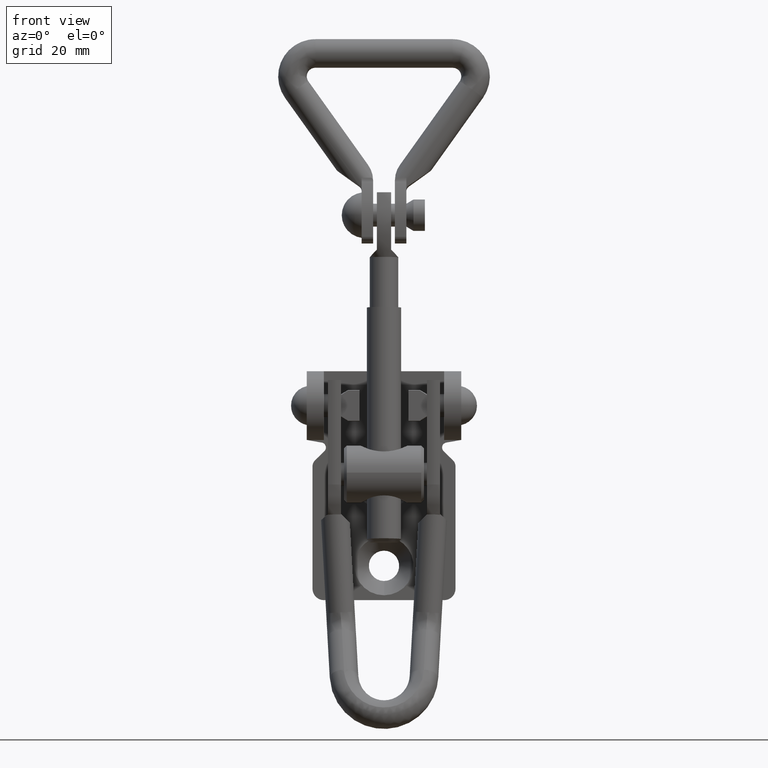
[diagram: clean part render]
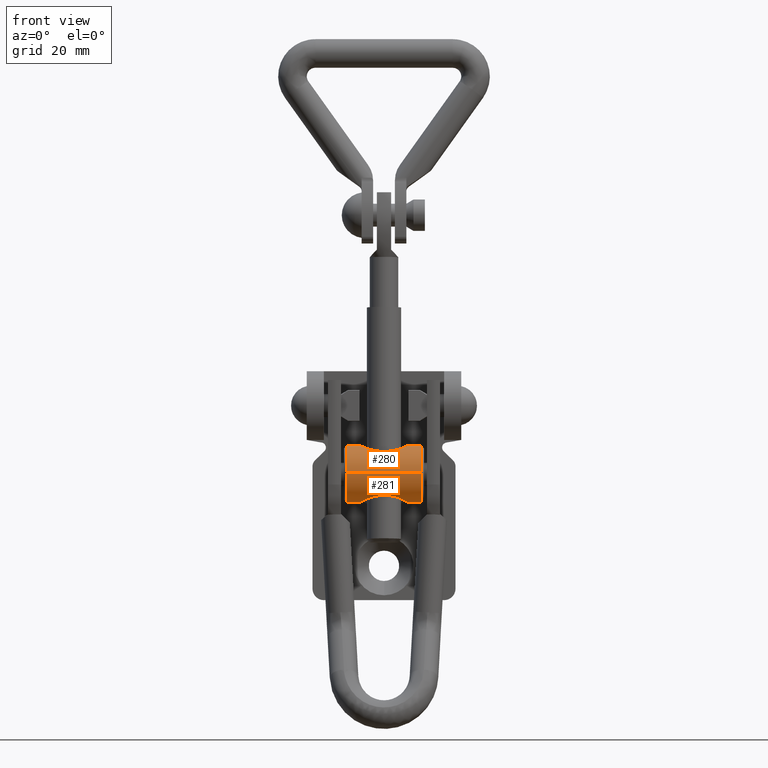
[diagram: same view with one multi-face feature highlighted, each face labeled with its STEP entity id]
A machine part, front view. The highlighted faces form ONE feature: a constant-radius fillet chain: 2 tangent blend faces with common blend radius 5 mm. The faces share edges in the B-rep.
Their STEP definitions:
[1] entity #281 (Cylinder):
#281=ADVANCED_FACE('',(#1011,#1012),#1010,.T.);
#1010=CYLINDRICAL_SURFACE('',#2880,5.00000000000E+00);
#1011=FACE_OUTER_BOUND('',#2881,.T.);
#1012=FACE_BOUND('',#2882,.T.);
#2877=CARTESIAN_POINT('',(0.00000000000E+00,0.00000000000E+00,0.00000000000E+00));
#2878=DIRECTION('',(1.00000000000E+00,0.00000000000E+00,-0.00000000000E+00));
#2879=DIRECTION('',(0.00000000000E+00,9.99961923064E-01,-8.72653549837E-03));
#2880=AXIS2_PLACEMENT_3D('',#2877,#2878,#2879);
#2881=EDGE_LOOP('',(#4366,#4367,#4368,#4369,#4370,#4371));
#2882=EDGE_LOOP('',(#4372));
#4366=ORIENTED_EDGE('',*,*,#5179,.F.);
#4367=ORIENTED_EDGE('',*,*,#5184,.F.);
#4368=ORIENTED_EDGE('',*,*,#5187,.T.);
#4369=ORIENTED_EDGE('',*,*,#5189,.T.);
#4370=ORIENTED_EDGE('',*,*,#5190,.T.);
#4371=ORIENTED_EDGE('',*,*,#5188,.F.);
#4372=ORIENTED_EDGE('',*,*,#5164,.F.);
#5164=EDGE_CURVE('',#6345,#6345,#6346,.T.);
#5179=EDGE_CURVE('',#6450,#6451,#6452,.T.);
#5184=EDGE_CURVE('',#6477,#6450,#6484,.T.);
#5187=EDGE_CURVE('',#6477,#6498,#6505,.T.);
#5188=EDGE_CURVE('',#6451,#6490,#6511,.T.);
#5189=EDGE_CURVE('',#6498,#6517,#6518,.T.);
#5190=EDGE_CURVE('',#6517,#6490,#6524,.T.);
#6345=VERTEX_POINT('',#9452);
#6346=(BOUNDED_CURVE() B_SPLINE_CURVE(3,(#9453,#9454,#9455,#9456,#9457,#9458,#9459,#9460,#9461,#9462,#9463,#9464,#9465,#9466,#9467,#9468,#9469,#9470,#9471,#9472,#9473,#9474,#9475,#9476,#9477,#9478,#9479,#9480,#9481,#9482,#9483,#9484,#9485,#9486,#9487,#9488,#9489,#9490,#9491,#9492,#9493,#9494,#9495,#9496,#9497,#9498,#9499,#9500,#9501,#9502,#9503,#9504,#9505,#9506,#9507,#9508,#9509,#9510,#9511,#9512,#9513,#9514,#9515,#9516,#9517,#9518,#9519,#9520,#9521,#9522),.UNSPECIFIED.,.T.,.F.) B_SPLINE_CURVE_WITH_KNOTS((4,2,2,2,2,2,2,2,2,2,2,2,2,2,2,2,2,2,2,2,2,2,2,2,2,2,2,2,2,2,2,2,2,2,4),(0.00000000000E+00,7.46015145107E-04,1.11902271766E-03,1.49203029021E-03,2.23804543532E-03,2.98406058043E-03,3.73007572553E-03,4.47609087064E-03,5.22210601575E-03,5.96812116086E-03,6.71413630596E-03,7.46015145107E-03,8.20616659618E-03,8.95218174128E-03,9.69819688639E-03,1.04442120315E-02,1.08172196041E-02,1.11902271766E-02,1.19362423217E-02,1.26822574668E-02,1.30552650394E-02,1.34282726119E-02,1.41742877570E-02,1.49203029021E-02,1.64123331924E-02,1.71583483375E-02,1.79043634826E-02,1.86503786277E-02,1.93963937728E-02,2.01424089179E-02,2.08884240630E-02,2.16344392081E-02,2.23804543532E-02,2.31264694983E-02,2.38724846434E-02),.UNSPECIFIED.) CURVE() GEOMETRIC_REPRESENTATION_ITEM() RATIONAL_B_SPLINE_CURVE((1.00000000000E+00,1.00000000000E+00,1.00000000000E+00,1.00000000000E+00,1.00000000000E+00,1.00000000000E+00,1.00000000000E+00,1.00000000000E+00,1.00000000000E+00,1.00000000000E+00,1.00000000000E+00,1.00000000000E+00,1.00000000000E+00,1.00000000000E+00,1.00000000000E+00,1.00000000000E+00,1.00000000000E+00,1.00000000000E+00,1.00000000000E+00,1.00000000000E+00,1.00000000000E+00,1.00000000000E+00,1.00000000000E+00,1.00000000000E+00,1.00000000000E+00,1.00000000000E+00,1.00000000000E+00,1.00000000000E+00,1.00000000000E+00,1.00000000000E+00,1.00000000000E+00,1.00000000000E+00,1.00000000000E+00,1.00000000000E+00,1.00000000000E+00,1.00000000000E+00,1.00000000000E+00,1.00000000000E+00,1.00000000000E+00,1.00000000000E+00,1.00000000000E+00,1.00000000000E+00,1.00000000000E+00,1.00000000000E+00,1.00000000000E+00,1.00000000000E+00,1.00000000000E+00,1.00000000000E+00,1.00000000000E+00,1.00000000000E+00,1.00000000000E+00,1.00000000000E+00,1.00000000000E+00,1.00000000000E+00,1.00000000000E+00,1.00000000000E+00,1.00000000000E+00,1.00000000000E+00,1.00000000000E+00,1.00000000000E+00,1.00000000000E+00,1.00000000000E+00,1.00000000000E+00,1.00000000000E+00,1.00000000000E+00,1.00000000000E+00,1.00000000000E+00,1.00000000000E+00,1.00000000000E+00,1.00000000000E+00)) REPRESENTATION_ITEM('') );
#6450=VERTEX_POINT('',#9651);
#6451=VERTEX_POINT('',#9652);
#6452=(BOUNDED_CURVE() B_SPLINE_CURVE(2,(#9653,#9654,#9655),.UNSPECIFIED.,.F.,.F.) B_SPLINE_CURVE_WITH_KNOTS((3,3),(0.00000000000E+00,1.00000000000E+00),.UNSPECIFIED.) CURVE() GEOMETRIC_REPRESENTATION_ITEM() RATIONAL_B_SPLINE_CURVE((1.00000000000E+00,7.04492960547E-01,1.00000000000E+00)) REPRESENTATION_ITEM('') );
#6477=VERTEX_POINT('',#9664);
#6484=CIRCLE('',#9672,5.00000000000E+00);
#6490=VERTEX_POINT('',#9673);
#6498=VERTEX_POINT('',#9678);
#6505=(BOUNDED_CURVE() B_SPLINE_CURVE(1,(#9683,#9684),.UNSPECIFIED.,.F.,.F.) B_SPLINE_CURVE_WITH_KNOTS((2,2),(8.33333343261E-02,9.16666667006E-01),.UNSPECIFIED.) CURVE() GEOMETRIC_REPRESENTATION_ITEM() RATIONAL_B_SPLINE_CURVE((1.00000000000E+00,1.00000000000E+00)) REPRESENTATION_ITEM('') );
#6511=(BOUNDED_CURVE() B_SPLINE_CURVE(1,(#9685,#9686),.UNSPECIFIED.,.F.,.F.) B_SPLINE_CURVE_WITH_KNOTS((2,2),(8.33333333333E-02,9.16666666667E-01),.UNSPECIFIED.) CURVE() GEOMETRIC_REPRESENTATION_ITEM() RATIONAL_B_SPLINE_CURVE((7.50000000000E-01,7.50000000000E-01)) REPRESENTATION_ITEM('') );
#6517=VERTEX_POINT('',#9687);
#6518=CIRCLE('',#9691,5.00000000000E+00);
#6524=(BOUNDED_CURVE() B_SPLINE_CURVE(2,(#9692,#9693,#9694),.UNSPECIFIED.,.F.,.F.) B_SPLINE_CURVE_WITH_KNOTS((3,3),(0.00000000000E+00,1.00000000000E+00),.UNSPECIFIED.) CURVE() GEOMETRIC_REPRESENTATION_ITEM() RATIONAL_B_SPLINE_CURVE((1.00000000000E+00,7.04460910766E-01,1.00000000000E+00)) REPRESENTATION_ITEM('') );
#9452=CARTESIAN_POINT('',(1.39500000000E+01,1.94289029309E-16,-5.00000000000E+00));
#9453=CARTESIAN_POINT('',(1.39500000000E+01,1.94289029309E-16,-5.00000000000E+00));
#9454=CARTESIAN_POINT('',(1.39500000000E+01,-2.53151343946E-01,-5.00000000000E+00));
#9455=CARTESIAN_POINT('',(1.39189650651E+01,-4.99355814534E-01,-4.98090121543E+00));
#9456=CARTESIAN_POINT('',(1.38276797413E+01,-8.58886701293E-01,-4.92716926046E+00));
#9457=CARTESIAN_POINT('',(1.37892484844E+01,-9.78016460825E-01,-4.90481414601E+00));
#9458=CARTESIAN_POINT('',(1.36989407229E+01,-1.20660607051E+00,-4.85363985017E+00));
#9459=CARTESIAN_POINT('',(1.36471329018E+01,-1.31639577999E+00,-4.82485568117E+00));
#9460=CARTESIAN_POINT('',(1.34723883401E+01,-1.63316344287E+00,-4.73088764861E+00));
#9461=CARTESIAN_POINT('',(1.33279901179E+01,-1.82961339428E+00,-4.65707933272E+00));
#9462=CARTESIAN_POINT('',(1.30005779432E+01,-2.17668854771E+00,-4.50531908415E+00));
#9463=CARTESIAN_POINT('',(1.28165885822E+01,-2.32943012249E+00,-4.42686050122E+00));
#9464=CARTESIAN_POINT('',(1.24165648727E+01,-2.59534875352E+00,-4.27638906561E+00));
#9465=CARTESIAN_POINT('',(1.22042110265E+01,-2.70646848670E+00,-4.20568717963E+00));
#9466=CARTESIAN_POINT('',(1.17573766217E+01,-2.89375803290E+00,-4.07908577618E+00));
#9467=CARTESIAN_POINT('',(1.15222358006E+01,-2.96971371370E+00,-4.02322235824E+00));
#9468=CARTESIAN_POINT('',(1.10454658986E+01,-3.08791653896E+00,-3.93322884327E+00));
#9469=CARTESIAN_POINT('',(1.08020802292E+01,-3.13098364278E+00,-3.89850269374E+00));
#9470=CARTESIAN_POINT('',(1.03057419238E+01,-3.18860179992E+00,-3.85151923090E+00));
#9471=CARTESIAN_POINT('',(1.00545760222E+01,-3.20274553625E+00,-3.83958605916E+00));
#9472=CARTESIAN_POINT('',(9.55674910083E+00,-3.20316792742E+00,-3.83923368713E+00));
#9473=CARTESIAN_POINT('',(9.30853820844E+00,-3.18964059641E+00,-3.85065074344E+00));
#9474=CARTESIAN_POINT('',(8.81357134902E+00,-3.13338316416E+00,-3.89656620998E+00));
#9475=CARTESIAN_POINT('',(8.56661197818E+00,-3.09026233235E+00,-3.93136663974E+00));
#9476=CARTESIAN_POINT('',(8.09168347600E+00,-2.97377865617E+00,-4.02019967700E+00));
#9477=CARTESIAN_POINT('',(7.86150189545E+00,-2.90028788732E+00,-4.07438960560E+00));
#9478=CARTESIAN_POINT('',(7.41699559904E+00,-2.71662062906E+00,-4.19908238134E+00));
#9479=CARTESIAN_POINT('',(7.20031990748E+00,-2.60479712782E+00,-4.27057635750E+00));
#9480=CARTESIAN_POINT('',(6.80047440958E+00,-2.34240373415E+00,-4.41994742599E+00));
#9481=CARTESIAN_POINT('',(6.61682507134E+00,-2.19237868396E+00,-4.49769696560E+00));
#9482=CARTESIAN_POINT('',(6.28526951171E+00,-1.84618253512E+00,-4.65052817810E+00));
#9483=CARTESIAN_POINT('',(6.14056743588E+00,-1.65224424178E+00,-4.72418357910E+00));
#9484=CARTESIAN_POINT('',(5.96384047516E+00,-1.33817701592E+00,-4.81884194127E+00));
#9485=CARTESIAN_POINT('',(5.91120975361E+00,-1.22912428091E+00,-4.84797651389E+00));
#9486=CARTESIAN_POINT('',(5.81903374081E+00,-1.00157291158E+00,-4.90004841608E+00));
#9487=CARTESIAN_POINT('',(5.77944395094E+00,-8.82399495721E-01,-4.92301692131E+00));
#9488=CARTESIAN_POINT('',(5.68494283399E+00,-5.22623758902E-01,-4.97853013617E+00));
#9489=CARTESIAN_POINT('',(5.65198942647E+00,-2.76194887191E-01,-4.99879289377E+00));
#9490=CARTESIAN_POINT('',(5.64818181138E+00,2.30609517554E-01,-5.00110320439E+00));
#9491=CARTESIAN_POINT('',(5.67758914397E+00,4.79186804578E-01,-4.98298406616E+00));
#9492=CARTESIAN_POINT('',(5.76728821231E+00,8.42011757049E-01,-4.93010687007E+00));
#9493=CARTESIAN_POINT('',(5.80516738183E+00,9.61765787100E-01,-4.90803461246E+00));
#9494=CARTESIAN_POINT('',(5.89423694422E+00,1.19117949889E+00,-4.85745700832E+00));
#9495=CARTESIAN_POINT('',(5.94560172104E+00,1.30176886282E+00,-4.82884657210E+00));
#9496=CARTESIAN_POINT('',(6.11988408960E+00,1.62180748320E+00,-4.73489028846E+00));
#9497=CARTESIAN_POINT('',(6.26396947855E+00,1.81956977046E+00,-4.66104666691E+00));
#9498=CARTESIAN_POINT('',(6.59031604511E+00,2.16847837329E+00,-4.50931166868E+00));
#9499=CARTESIAN_POINT('',(6.77611657619E+00,2.32373973229E+00,-4.42985683946E+00));
#9500=CARTESIAN_POINT('',(7.37361836482E+00,2.72340615097E+00,-4.20436092445E+00));
#9501=CARTESIAN_POINT('',(7.83181143501E+00,2.90808018919E+00,-4.07006838879E+00));
#9502=CARTESIAN_POINT('',(8.54835976521E+00,3.08670691906E+00,-3.93418824726E+00));
#9503=CARTESIAN_POINT('',(8.79494504028E+00,3.13053979191E+00,-3.89886109411E+00));
#9504=CARTESIAN_POINT('',(9.29238105671E+00,3.18848147207E+00,-3.85162084351E+00));
#9505=CARTESIAN_POINT('',(9.54159329964E+00,3.20262716107E+00,-3.83968481098E+00));
#9506=CARTESIAN_POINT('',(1.00409647260E+01,3.20327971104E+00,-3.83914043419E+00));
#9507=CARTESIAN_POINT('',(1.02923983256E+01,3.18963644451E+00,-3.85065765980E+00));
#9508=CARTESIAN_POINT('',(1.07905884604E+01,3.13280701911E+00,-3.89703287671E+00));
#9509=CARTESIAN_POINT('',(1.10339705196E+01,3.09015134550E+00,-3.93145502349E+00));
#9510=CARTESIAN_POINT('',(1.15090516727E+01,2.97356638096E+00,-4.02035780968E+00));
#9511=CARTESIAN_POINT('',(1.17407595854E+01,2.89969080841E+00,-4.07486412310E+00));
#9512=CARTESIAN_POINT('',(1.21909991286E+01,2.71297213714E+00,-4.20148861586E+00));
#9513=CARTESIAN_POINT('',(1.24065249348E+01,2.60090848505E+00,-4.27294957640E+00));
#9514=CARTESIAN_POINT('',(1.28050006587E+01,2.33818867416E+00,-4.42218235197E+00));
#9515=CARTESIAN_POINT('',(1.29916269233E+01,2.18488575835E+00,-4.50137698506E+00));
#9516=CARTESIAN_POINT('',(1.33223070726E+01,1.83687307939E+00,-4.65424728918E+00));
#9517=CARTESIAN_POINT('',(1.34650852908E+01,1.64454697473E+00,-4.72706985463E+00));
#9518=CARTESIAN_POINT('',(1.37028242544E+01,1.21722089159E+00,-4.85469849360E+00));
#9519=CARTESIAN_POINT('',(1.37942998898E+01,9.87249381324E-01,-4.90754846339E+00));
#9520=CARTESIAN_POINT('',(1.39174891024E+01,5.08163889730E-01,-4.98000629745E+00));
#9521=CARTESIAN_POINT('',(1.39500000000E+01,2.53151343946E-01,-5.00000000000E+00));
#9522=CARTESIAN_POINT('',(1.39500000000E+01,-8.32667268469E-17,-5.00000000000E+00));
#9651=CARTESIAN_POINT('',(3.30000000000E+00,-4.88678453230E-04,-4.99999997612E+00));
#9652=CARTESIAN_POINT('',(3.30000000000E+00,-4.99980961532E+00,4.36326774919E-02));
#9653=CARTESIAN_POINT('',(3.30000000000E+00,-4.88678453228E-04,-4.99999997612E+00));
#9654=CARTESIAN_POINT('',(3.30000000000E+00,-5.03752248653E+00,-4.99950767814E+00));
#9655=CARTESIAN_POINT('',(3.30000000000E+00,-4.99980961532E+00,4.36326774919E-02));
#9664=CARTESIAN_POINT('',(3.30000000000E+00,4.99980961532E+00,-4.36326774759E-02));
#9669=CARTESIAN_POINT('',(3.30000000000E+00,0.00000000000E+00,0.00000000000E+00));
#9670=DIRECTION('',(-1.00000000000E+00,0.00000000000E+00,0.00000000000E+00));
#9671=DIRECTION('',(0.00000000000E+00,-1.22460635382E-16,1.00000000000E+00));
#9672=AXIS2_PLACEMENT_3D('',#9669,#9670,#9671);
#9673=CARTESIAN_POINT('',(1.63000000000E+01,-4.99980961532E+00,4.36326774919E-02));
#9678=CARTESIAN_POINT('',(1.63000000000E+01,4.99980961532E+00,-4.36326774759E-02));
#9683=CARTESIAN_POINT('',(3.30000001549E+00,4.99980961532E+00,-4.36326774919E-02));
#9684=CARTESIAN_POINT('',(1.63000000053E+01,4.99980961532E+00,-4.36326774919E-02));
#9685=CARTESIAN_POINT('',(3.30000000000E+00,-4.99980961532E+00,4.36326774919E-02));
#9686=CARTESIAN_POINT('',(1.63000000000E+01,-4.99980961532E+00,4.36326774919E-02));
#9687=CARTESIAN_POINT('',(1.63000000000E+01,6.25252205330E-08,-5.00000000000E+00));
#9688=CARTESIAN_POINT('',(1.63000000000E+01,0.00000000000E+00,0.00000000000E+00));
#9689=DIRECTION('',(-1.00000000000E+00,0.00000000000E+00,0.00000000000E+00));
#9690=DIRECTION('',(0.00000000000E+00,-1.22460635382E-16,1.00000000000E+00));
#9691=AXIS2_PLACEMENT_3D('',#9688,#9689,#9690);
#9692=CARTESIAN_POINT('',(1.63000000000E+01,6.25252195608E-08,-5.00000000000E+00));
#9693=CARTESIAN_POINT('',(1.63000000000E+01,-5.03748872651E+00,-5.00000006299E+00));
#9694=CARTESIAN_POINT('',(1.63000000000E+01,-4.99980961532E+00,4.36326774919E-02));
[2] entity #280 (Cylinder):
#280=ADVANCED_FACE('',(#1000,#1001),#999,.T.);
#999=CYLINDRICAL_SURFACE('',#2874,5.00000000000E+00);
#1000=FACE_OUTER_BOUND('',#2875,.T.);
#1001=FACE_BOUND('',#2876,.T.);
#2871=CARTESIAN_POINT('',(0.00000000000E+00,0.00000000000E+00,0.00000000000E+00));
#2872=DIRECTION('',(1.00000000000E+00,0.00000000000E+00,-0.00000000000E+00));
#2873=DIRECTION('',(0.00000000000E+00,9.99961923064E-01,-8.72653549837E-03));
#2874=AXIS2_PLACEMENT_3D('',#2871,#2872,#2873);
#2875=EDGE_LOOP('',(#4359,#4360,#4361,#4362,#4363,#4364));
#2876=EDGE_LOOP('',(#4365));
#4359=ORIENTED_EDGE('',*,*,#5185,.T.);
#4360=ORIENTED_EDGE('',*,*,#5186,.T.);
#4361=ORIENTED_EDGE('',*,*,#5187,.F.);
#4362=ORIENTED_EDGE('',*,*,#5183,.F.);
#4363=ORIENTED_EDGE('',*,*,#5180,.F.);
#4364=ORIENTED_EDGE('',*,*,#5188,.T.);
#4365=ORIENTED_EDGE('',*,*,#5161,.F.);
#5161=EDGE_CURVE('',#6324,#6324,#6325,.T.);
#5180=EDGE_CURVE('',#6451,#6458,#6459,.T.);
#5183=EDGE_CURVE('',#6458,#6477,#6478,.T.);
#5185=EDGE_CURVE('',#6490,#6491,#6492,.T.);
#5186=EDGE_CURVE('',#6491,#6498,#6499,.T.);
#5187=EDGE_CURVE('',#6477,#6498,#6505,.T.);
#5188=EDGE_CURVE('',#6451,#6490,#6511,.T.);
#6324=VERTEX_POINT('',#9313);
#6325=(BOUNDED_CURVE() B_SPLINE_CURVE(3,(#9314,#9315,#9316,#9317,#9318,#9319,#9320,#9321,#9322,#9323,#9324,#9325,#9326,#9327,#9328,#9329,#9330,#9331,#9332,#9333,#9334,#9335,#9336,#9337,#9338,#9339,#9340,#9341,#9342,#9343,#9344,#9345,#9346,#9347,#9348,#9349,#9350,#9351,#9352,#9353,#9354,#9355,#9356,#9357,#9358,#9359,#9360,#9361,#9362,#9363,#9364,#9365,#9366,#9367,#9368,#9369,#9370,#9371,#9372,#9373,#9374,#9375,#9376,#9377,#9378,#9379,#9380,#9381,#9382,#9383),.UNSPECIFIED.,.T.,.F.) B_SPLINE_CURVE_WITH_KNOTS((4,2,2,2,2,2,2,2,2,2,2,2,2,2,2,2,2,2,2,2,2,2,2,2,2,2,2,2,2,2,2,2,2,2,4),(0.00000000000E+00,7.46015145107E-04,1.11902271766E-03,1.49203029021E-03,2.23804543532E-03,2.98406058043E-03,3.73007572553E-03,4.47609087064E-03,5.22210601575E-03,5.96812116086E-03,6.71413630596E-03,7.46015145107E-03,8.20616659618E-03,8.95218174128E-03,9.69819688639E-03,1.04442120315E-02,1.08172196041E-02,1.11902271766E-02,1.19362423217E-02,1.26822574668E-02,1.30552650394E-02,1.34282726119E-02,1.41742877570E-02,1.49203029021E-02,1.64123331924E-02,1.71583483375E-02,1.79043634826E-02,1.86503786277E-02,1.93963937728E-02,2.01424089179E-02,2.08884240630E-02,2.16344392081E-02,2.23804543532E-02,2.31264694983E-02,2.38724846434E-02),.UNSPECIFIED.) CURVE() GEOMETRIC_REPRESENTATION_ITEM() RATIONAL_B_SPLINE_CURVE((1.00000000000E+00,1.00000000000E+00,1.00000000000E+00,1.00000000000E+00,1.00000000000E+00,1.00000000000E+00,1.00000000000E+00,1.00000000000E+00,1.00000000000E+00,1.00000000000E+00,1.00000000000E+00,1.00000000000E+00,1.00000000000E+00,1.00000000000E+00,1.00000000000E+00,1.00000000000E+00,1.00000000000E+00,1.00000000000E+00,1.00000000000E+00,1.00000000000E+00,1.00000000000E+00,1.00000000000E+00,1.00000000000E+00,1.00000000000E+00,1.00000000000E+00,1.00000000000E+00,1.00000000000E+00,1.00000000000E+00,1.00000000000E+00,1.00000000000E+00,1.00000000000E+00,1.00000000000E+00,1.00000000000E+00,1.00000000000E+00,1.00000000000E+00,1.00000000000E+00,1.00000000000E+00,1.00000000000E+00,1.00000000000E+00,1.00000000000E+00,1.00000000000E+00,1.00000000000E+00,1.00000000000E+00,1.00000000000E+00,1.00000000000E+00,1.00000000000E+00,1.00000000000E+00,1.00000000000E+00,1.00000000000E+00,1.00000000000E+00,1.00000000000E+00,1.00000000000E+00,1.00000000000E+00,1.00000000000E+00,1.00000000000E+00,1.00000000000E+00,1.00000000000E+00,1.00000000000E+00,1.00000000000E+00,1.00000000000E+00,1.00000000000E+00,1.00000000000E+00,1.00000000000E+00,1.00000000000E+00,1.00000000000E+00,1.00000000000E+00,1.00000000000E+00,1.00000000000E+00,1.00000000000E+00,1.00000000000E+00)) REPRESENTATION_ITEM('') );
#6451=VERTEX_POINT('',#9652);
#6458=VERTEX_POINT('',#9656);
#6459=(BOUNDED_CURVE() B_SPLINE_CURVE(2,(#9657,#9658,#9659),.UNSPECIFIED.,.F.,.F.) B_SPLINE_CURVE_WITH_KNOTS((3,3),(8.86644636869E-04,1.00000000000E+00),.UNSPECIFIED.) CURVE() GEOMETRIC_REPRESENTATION_ITEM() RATIONAL_B_SPLINE_CURVE((1.00000000000E+00,7.09745401561E-01,1.00000000000E+00)) REPRESENTATION_ITEM('') );
#6477=VERTEX_POINT('',#9664);
#6478=CIRCLE('',#9668,5.00000000000E+00);
#6490=VERTEX_POINT('',#9673);
#6491=VERTEX_POINT('',#9674);
#6492=(BOUNDED_CURVE() B_SPLINE_CURVE(2,(#9675,#9676,#9677),.UNSPECIFIED.,.F.,.F.) B_SPLINE_CURVE_WITH_KNOTS((3,3),(8.92094204392E-04,1.00000000000E+00),.UNSPECIFIED.) CURVE() GEOMETRIC_REPRESENTATION_ITEM() RATIONAL_B_SPLINE_CURVE((1.00000000000E+00,7.09742783655E-01,1.00000000000E+00)) REPRESENTATION_ITEM('') );
#6498=VERTEX_POINT('',#9678);
#6499=CIRCLE('',#9682,5.00000000000E+00);
#6505=(BOUNDED_CURVE() B_SPLINE_CURVE(1,(#9683,#9684),.UNSPECIFIED.,.F.,.F.) B_SPLINE_CURVE_WITH_KNOTS((2,2),(8.33333343261E-02,9.16666667006E-01),.UNSPECIFIED.) CURVE() GEOMETRIC_REPRESENTATION_ITEM() RATIONAL_B_SPLINE_CURVE((1.00000000000E+00,1.00000000000E+00)) REPRESENTATION_ITEM('') );
#6511=(BOUNDED_CURVE() B_SPLINE_CURVE(1,(#9685,#9686),.UNSPECIFIED.,.F.,.F.) B_SPLINE_CURVE_WITH_KNOTS((2,2),(8.33333333333E-02,9.16666666667E-01),.UNSPECIFIED.) CURVE() GEOMETRIC_REPRESENTATION_ITEM() RATIONAL_B_SPLINE_CURVE((7.50000000000E-01,7.50000000000E-01)) REPRESENTATION_ITEM('') );
#9313=CARTESIAN_POINT('',(1.39500000000E+01,1.38777878078E-16,5.00000000000E+00));
#9314=CARTESIAN_POINT('',(1.39500000000E+01,1.38777878078E-16,5.00000000000E+00));
#9315=CARTESIAN_POINT('',(1.39500000000E+01,2.53151343946E-01,5.00000000000E+00));
#9316=CARTESIAN_POINT('',(1.39189650651E+01,4.99355814534E-01,4.98090121543E+00));
#9317=CARTESIAN_POINT('',(1.38276797413E+01,8.58886701293E-01,4.92716926046E+00));
#9318=CARTESIAN_POINT('',(1.37892484844E+01,9.78016460825E-01,4.90481414601E+00));
#9319=CARTESIAN_POINT('',(1.36989407229E+01,1.20660607051E+00,4.85363985017E+00));
#9320=CARTESIAN_POINT('',(1.36471329018E+01,1.31639577999E+00,4.82485568117E+00));
#9321=CARTESIAN_POINT('',(1.34723883401E+01,1.63316344287E+00,4.73088764861E+00));
#9322=CARTESIAN_POINT('',(1.33279901179E+01,1.82961339428E+00,4.65707933272E+00));
#9323=CARTESIAN_POINT('',(1.30005779432E+01,2.17668854771E+00,4.50531908415E+00));
#9324=CARTESIAN_POINT('',(1.28165885822E+01,2.32943012249E+00,4.42686050122E+00));
#9325=CARTESIAN_POINT('',(1.24165648727E+01,2.59534875352E+00,4.27638906561E+00));
#9326=CARTESIAN_POINT('',(1.22042110265E+01,2.70646848670E+00,4.20568717963E+00));
#9327=CARTESIAN_POINT('',(1.17573766217E+01,2.89375803290E+00,4.07908577618E+00));
#9328=CARTESIAN_POINT('',(1.15222358006E+01,2.96971371370E+00,4.02322235824E+00));
#9329=CARTESIAN_POINT('',(1.10454658986E+01,3.08791653896E+00,3.93322884327E+00));
#9330=CARTESIAN_POINT('',(1.08020802292E+01,3.13098364278E+00,3.89850269374E+00));
#9331=CARTESIAN_POINT('',(1.03057419238E+01,3.18860179992E+00,3.85151923090E+00));
#9332=CARTESIAN_POINT('',(1.00545760222E+01,3.20274553625E+00,3.83958605916E+00));
#9333=CARTESIAN_POINT('',(9.55674910083E+00,3.20316792742E+00,3.83923368713E+00));
#9334=CARTESIAN_POINT('',(9.30853820844E+00,3.18964059641E+00,3.85065074344E+00));
#9335=CARTESIAN_POINT('',(8.81357134902E+00,3.13338316416E+00,3.89656620998E+00));
#9336=CARTESIAN_POINT('',(8.56661197818E+00,3.09026233235E+00,3.93136663974E+00));
#9337=CARTESIAN_POINT('',(8.09168347600E+00,2.97377865617E+00,4.02019967700E+00));
#9338=CARTESIAN_POINT('',(7.86150189545E+00,2.90028788732E+00,4.07438960560E+00));
#9339=CARTESIAN_POINT('',(7.41699559904E+00,2.71662062906E+00,4.19908238134E+00));
#9340=CARTESIAN_POINT('',(7.20031990748E+00,2.60479712782E+00,4.27057635750E+00));
#9341=CARTESIAN_POINT('',(6.80047440958E+00,2.34240373415E+00,4.41994742599E+00));
#9342=CARTESIAN_POINT('',(6.61682507134E+00,2.19237868396E+00,4.49769696560E+00));
#9343=CARTESIAN_POINT('',(6.28526951171E+00,1.84618253512E+00,4.65052817810E+00));
#9344=CARTESIAN_POINT('',(6.14056743588E+00,1.65224424178E+00,4.72418357910E+00));
#9345=CARTESIAN_POINT('',(5.96384047516E+00,1.33817701592E+00,4.81884194127E+00));
#9346=CARTESIAN_POINT('',(5.91120975361E+00,1.22912428091E+00,4.84797651389E+00));
#9347=CARTESIAN_POINT('',(5.81903374081E+00,1.00157291158E+00,4.90004841608E+00));
#9348=CARTESIAN_POINT('',(5.77944395094E+00,8.82399495721E-01,4.92301692131E+00));
#9349=CARTESIAN_POINT('',(5.68494283399E+00,5.22623758902E-01,4.97853013617E+00));
#9350=CARTESIAN_POINT('',(5.65198942647E+00,2.76194887191E-01,4.99879289377E+00));
#9351=CARTESIAN_POINT('',(5.64818181138E+00,-2.30609517554E-01,5.00110320439E+00));
#9352=CARTESIAN_POINT('',(5.67758914397E+00,-4.79186804578E-01,4.98298406616E+00));
#9353=CARTESIAN_POINT('',(5.76728821231E+00,-8.42011757049E-01,4.93010687007E+00));
#9354=CARTESIAN_POINT('',(5.80516738183E+00,-9.61765787100E-01,4.90803461246E+00));
#9355=CARTESIAN_POINT('',(5.89423694422E+00,-1.19117949889E+00,4.85745700832E+00));
#9356=CARTESIAN_POINT('',(5.94560172104E+00,-1.30176886282E+00,4.82884657210E+00));
#9357=CARTESIAN_POINT('',(6.11988408960E+00,-1.62180748320E+00,4.73489028846E+00));
#9358=CARTESIAN_POINT('',(6.26396947855E+00,-1.81956977046E+00,4.66104666691E+00));
#9359=CARTESIAN_POINT('',(6.59031604511E+00,-2.16847837329E+00,4.50931166868E+00));
#9360=CARTESIAN_POINT('',(6.77611657619E+00,-2.32373973229E+00,4.42985683946E+00));
#9361=CARTESIAN_POINT('',(7.37361836482E+00,-2.72340615097E+00,4.20436092445E+00));
#9362=CARTESIAN_POINT('',(7.83181143501E+00,-2.90808018919E+00,4.07006838879E+00));
#9363=CARTESIAN_POINT('',(8.54835976521E+00,-3.08670691906E+00,3.93418824726E+00));
#9364=CARTESIAN_POINT('',(8.79494504028E+00,-3.13053979191E+00,3.89886109411E+00));
#9365=CARTESIAN_POINT('',(9.29238105671E+00,-3.18848147207E+00,3.85162084351E+00));
#9366=CARTESIAN_POINT('',(9.54159329964E+00,-3.20262716107E+00,3.83968481098E+00));
#9367=CARTESIAN_POINT('',(1.00409647260E+01,-3.20327971104E+00,3.83914043419E+00));
#9368=CARTESIAN_POINT('',(1.02923983256E+01,-3.18963644451E+00,3.85065765980E+00));
#9369=CARTESIAN_POINT('',(1.07905884604E+01,-3.13280701911E+00,3.89703287671E+00));
#9370=CARTESIAN_POINT('',(1.10339705196E+01,-3.09015134550E+00,3.93145502349E+00));
#9371=CARTESIAN_POINT('',(1.15090516727E+01,-2.97356638096E+00,4.02035780968E+00));
#9372=CARTESIAN_POINT('',(1.17407595854E+01,-2.89969080841E+00,4.07486412310E+00));
#9373=CARTESIAN_POINT('',(1.21909991286E+01,-2.71297213714E+00,4.20148861586E+00));
#9374=CARTESIAN_POINT('',(1.24065249348E+01,-2.60090848505E+00,4.27294957640E+00));
#9375=CARTESIAN_POINT('',(1.28050006587E+01,-2.33818867416E+00,4.42218235197E+00));
#9376=CARTESIAN_POINT('',(1.29916269233E+01,-2.18488575835E+00,4.50137698506E+00));
#9377=CARTESIAN_POINT('',(1.33223070726E+01,-1.83687307939E+00,4.65424728918E+00));
#9378=CARTESIAN_POINT('',(1.34650852908E+01,-1.64454697473E+00,4.72706985463E+00));
#9379=CARTESIAN_POINT('',(1.37028242544E+01,-1.21722089159E+00,4.85469849360E+00));
#9380=CARTESIAN_POINT('',(1.37942998898E+01,-9.87249381324E-01,4.90754846339E+00));
#9381=CARTESIAN_POINT('',(1.39174891024E+01,-5.08163889730E-01,4.98000629745E+00));
#9382=CARTESIAN_POINT('',(1.39500000000E+01,-2.53151343946E-01,5.00000000000E+00));
#9383=CARTESIAN_POINT('',(1.39500000000E+01,-2.49800180541E-16,5.00000000000E+00));
#9652=CARTESIAN_POINT('',(3.30000000000E+00,-4.99980961532E+00,4.36326774919E-02));
#9656=CARTESIAN_POINT('',(3.30000000000E+00,0.00000000000E+00,5.00000000000E+00));
#9657=CARTESIAN_POINT('',(3.30000000000E+00,-4.99980961532E+00,4.36326774919E-02));
#9658=CARTESIAN_POINT('',(3.30000000000E+00,-4.96275337685E+00,5.00000000000E+00));
#9659=CARTESIAN_POINT('',(3.30000000000E+00,-1.83880688454E-15,5.00000000000E+00));
#9664=CARTESIAN_POINT('',(3.30000000000E+00,4.99980961532E+00,-4.36326774759E-02));
#9665=CARTESIAN_POINT('',(3.30000000000E+00,0.00000000000E+00,0.00000000000E+00));
#9666=DIRECTION('',(-1.00000000000E+00,0.00000000000E+00,0.00000000000E+00));
#9667=DIRECTION('',(0.00000000000E+00,-1.22460635382E-16,1.00000000000E+00));
#9668=AXIS2_PLACEMENT_3D('',#9665,#9666,#9667);
#9673=CARTESIAN_POINT('',(1.63000000000E+01,-4.99980961532E+00,4.36326774919E-02));
#9674=CARTESIAN_POINT('',(1.63000000000E+01,0.00000000000E+00,5.00000000000E+00));
#9675=CARTESIAN_POINT('',(1.63000000000E+01,-4.99980961532E+00,4.36326774919E-02));
#9676=CARTESIAN_POINT('',(1.63000000000E+01,-4.96279026309E+00,5.00000000000E+00));
#9677=CARTESIAN_POINT('',(1.63000000000E+01,-1.83186799063E-15,5.00000000000E+00));
#9678=CARTESIAN_POINT('',(1.63000000000E+01,4.99980961532E+00,-4.36326774759E-02));
#9679=CARTESIAN_POINT('',(1.63000000000E+01,0.00000000000E+00,0.00000000000E+00));
#9680=DIRECTION('',(-1.00000000000E+00,0.00000000000E+00,0.00000000000E+00));
#9681=DIRECTION('',(0.00000000000E+00,-1.22460635382E-16,1.00000000000E+00));
#9682=AXIS2_PLACEMENT_3D('',#9679,#9680,#9681);
#9683=CARTESIAN_POINT('',(3.30000001549E+00,4.99980961532E+00,-4.36326774919E-02));
#9684=CARTESIAN_POINT('',(1.63000000053E+01,4.99980961532E+00,-4.36326774919E-02));
#9685=CARTESIAN_POINT('',(3.30000000000E+00,-4.99980961532E+00,4.36326774919E-02));
#9686=CARTESIAN_POINT('',(1.63000000000E+01,-4.99980961532E+00,4.36326774919E-02));